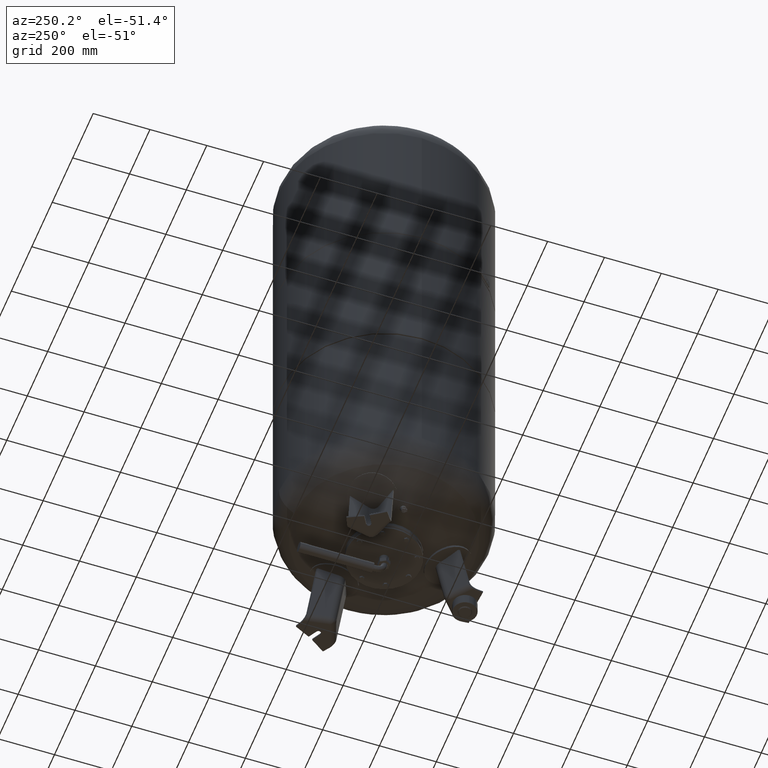
[diagram: clean part render]
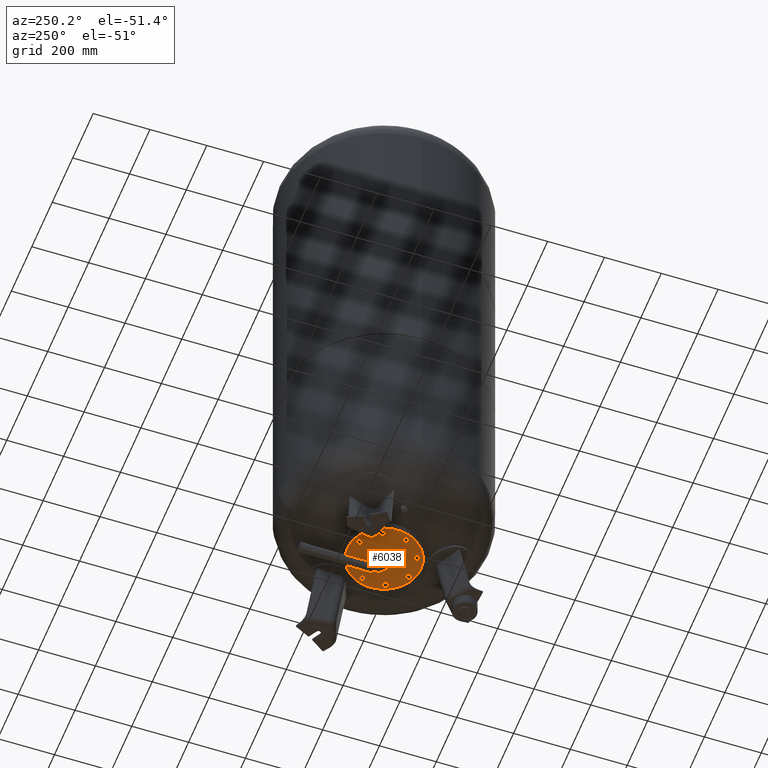
[diagram: same view with one face highlighted and labeled with its STEP entity id]
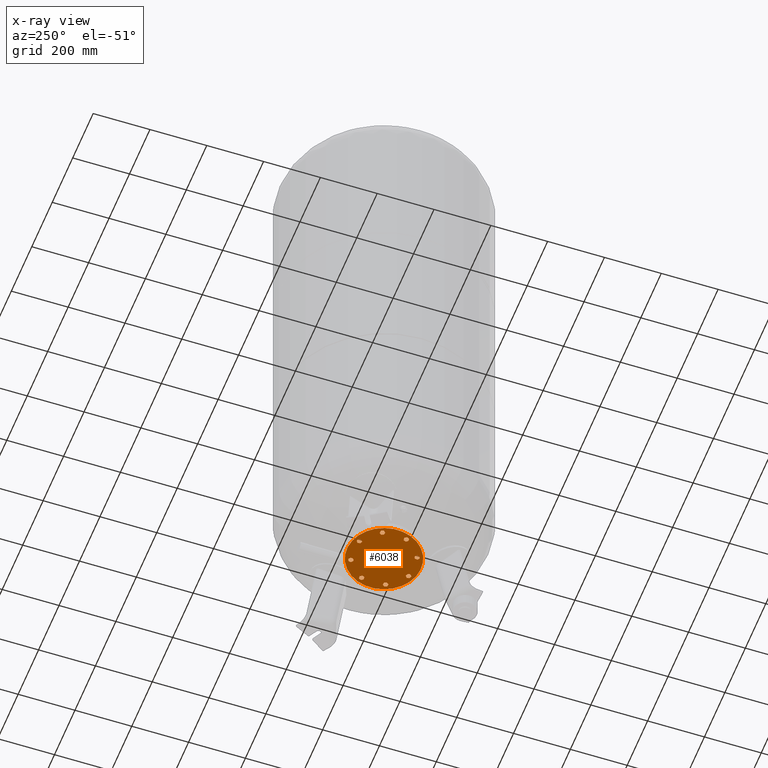
[diagram: x-ray of the same camera — body ghosted, the highlighted face saturated]
A machine part, auxiliary view. The second image highlights one B-rep face of the part: STEP entity #6038.
The next image is the same camera in x-ray: the body ghosted, the highlighted face saturated — about 0% of this face is hidden behind the body in this view.
In plain terms, the highlighted planar face has unit normal (0, 0, 1).
Its self-contained STEP definition (entity closure, byte-faithful):
#2066=CARTESIAN_POINT('',(-120.104339226467270,-49.748846207461675,165.0));
#2067=VERTEX_POINT('',#2066);
#2076=CARTESIAN_POINT('',(120.104339226467290,49.748846207461661,165.0));
#2077=VERTEX_POINT('',#2076);
#2078=CARTESIAN_POINT('',(1.171630E-015,-2.828565E-015,165.0));
#2079=DIRECTION('',(0.0,0.0,1.0));
#2080=DIRECTION('',(-0.923879532511287,-0.382683432365090,0.0));
#2081=AXIS2_PLACEMENT_3D('',#2078,#2079,#2080);
#2082=CIRCLE('',#2081,130.0);
#2083=EDGE_CURVE('',#2067,#2077,#2082,.T.);
#2110=CARTESIAN_POINT('',(-15.567370122815184,-6.448215835351768,165.0));
#2111=VERTEX_POINT('',#2110);
#2127=CARTESIAN_POINT('',(15.567370122815188,6.448215835351761,165.0));
#2128=VERTEX_POINT('',#2127);
#2135=CARTESIAN_POINT('',(1.171630E-015,-2.828565E-015,165.0));
#2136=DIRECTION('',(0.0,0.0,1.0));
#2137=DIRECTION('',(-0.923879532511287,-0.382683432365090,0.0));
#2138=AXIS2_PLACEMENT_3D('',#2135,#2136,#2137);
#2139=CIRCLE('',#2138,16.850000000000005);
#2140=EDGE_CURVE('',#2111,#2128,#2139,.T.);
#3986=CARTESIAN_POINT('',(-34.766493326885701,-96.003251377674417,165.0));
#3987=VERTEX_POINT('',#3986);
#3988=CARTESIAN_POINT('',(-43.300926875592538,-92.468173254628084,165.0));
#3989=VERTEX_POINT('',#3988);
#3990=CARTESIAN_POINT('',(-34.766493326885701,-96.003251377674417,165.0));
#3991=DIRECTION('',(-0.923879532511286,0.382683432365091,0.0));
#3992=VECTOR('',#3991,9.237604307034024);
#3993=LINE('',#3990,#3992);
#3994=EDGE_CURVE('',#3987,#3989,#3993,.T.);
#4026=CARTESIAN_POINT('',(-33.560744011452989,-105.161826699287860,165.0));
#4027=VERTEX_POINT('',#4026);
#4028=CARTESIAN_POINT('',(-33.560744011452989,-105.161826699287860,165.0));
#4029=DIRECTION('',(-0.130526192220053,0.991444861373810,0.0));
#4030=VECTOR('',#4029,9.237604307034005);
#4031=LINE('',#4028,#4030);
#4032=EDGE_CURVE('',#4027,#3987,#4031,.T.);
#4057=CARTESIAN_POINT('',(-40.889428244727128,-110.785323897855010,165.0));
#4058=VERTEX_POINT('',#4057);
#4059=CARTESIAN_POINT('',(-40.889428244727128,-110.785323897855010,165.0));
#4060=DIRECTION('',(0.793353340291235,0.608761429008721,0.0));
#4061=VECTOR('',#4060,9.237604307034024);
#4062=LINE('',#4059,#4061);
#4063=EDGE_CURVE('',#4058,#4027,#4062,.T.);
#4088=CARTESIAN_POINT('',(-49.423861793433986,-107.250245774808700,165.0));
#4089=VERTEX_POINT('',#4088);
#4090=CARTESIAN_POINT('',(-49.423861793433986,-107.250245774808700,165.0));
#4091=DIRECTION('',(0.923879532511287,-0.382683432365088,0.0));
#4092=VECTOR('',#4091,9.237604307034033);
#4093=LINE('',#4090,#4092);
#4094=EDGE_CURVE('',#4089,#4058,#4093,.T.);
#4119=CARTESIAN_POINT('',(-50.629611108866676,-98.091670453195235,165.0));
#4120=VERTEX_POINT('',#4119);
#4121=CARTESIAN_POINT('',(-43.300926875592538,-92.468173254628084,165.0));
#4122=DIRECTION('',(-0.793353340291235,-0.608761429008721,0.0));
#4123=VECTOR('',#4122,9.237604307034024);
#4124=LINE('',#4121,#4123);
#4125=EDGE_CURVE('',#3989,#4120,#4124,.T.);
#4150=CARTESIAN_POINT('',(-50.629611108866676,-98.091670453195235,165.0));
#4151=DIRECTION('',(0.130526192220051,-0.991444861373811,0.0));
#4152=VECTOR('',#4151,9.237604307034030);
#4153=LINE('',#4150,#4152);
#4154=EDGE_CURVE('',#4120,#4089,#4153,.T.);
#4232=CARTESIAN_POINT('',(43.300926875592602,-92.468173254628084,165.0));
#4233=VERTEX_POINT('',#4232);
#4234=CARTESIAN_POINT('',(34.766493326885758,-96.003251377674403,165.0));
#4235=VERTEX_POINT('',#4234);
#4236=CARTESIAN_POINT('',(43.300926875592602,-92.468173254628084,165.0));
#4237=DIRECTION('',(-0.923879532511287,-0.382683432365090,0.0));
#4238=VECTOR('',#4237,9.237604307034026);
#4239=LINE('',#4236,#4238);
#4240=EDGE_CURVE('',#4233,#4235,#4239,.T.);
#4272=CARTESIAN_POINT('',(50.629611108866733,-98.091670453195221,165.0));
#4273=VERTEX_POINT('',#4272);
#4274=CARTESIAN_POINT('',(50.629611108866733,-98.091670453195221,165.0));
#4275=DIRECTION('',(-0.793353340291235,0.608761429008721,0.0));
#4276=VECTOR('',#4275,9.237604307034008);
#4277=LINE('',#4274,#4276);
#4278=EDGE_CURVE('',#4273,#4233,#4277,.T.);
#4303=CARTESIAN_POINT('',(49.423861793434035,-107.250245774808680,165.0));
#4304=VERTEX_POINT('',#4303);
#4305=CARTESIAN_POINT('',(49.423861793434035,-107.250245774808680,165.0));
#4306=DIRECTION('',(0.130526192220051,0.991444861373810,0.0));
#4307=VECTOR('',#4306,9.237604307034017);
#4308=LINE('',#4305,#4307);
#4309=EDGE_CURVE('',#4304,#4273,#4308,.T.);
#4334=CARTESIAN_POINT('',(40.889428244727185,-110.785323897854990,165.0));
#4335=VERTEX_POINT('',#4334);
#4336=CARTESIAN_POINT('',(40.889428244727185,-110.785323897854990,165.0));
#4337=DIRECTION('',(0.923879532511287,0.382683432365090,0.0));
#4338=VECTOR('',#4337,9.237604307034031);
#4339=LINE('',#4336,#4338);
#4340=EDGE_CURVE('',#4335,#4304,#4339,.T.);
#4365=CARTESIAN_POINT('',(33.560744011453068,-105.161826699287840,165.0));
#4366=VERTEX_POINT('',#4365);
#4367=CARTESIAN_POINT('',(34.766493326885758,-96.003251377674403,165.0));
#4368=DIRECTION('',(-0.130526192220051,-0.991444861373810,0.0));
#4369=VECTOR('',#4368,9.237604307034003);
#4370=LINE('',#4367,#4369);
#4371=EDGE_CURVE('',#4235,#4366,#4370,.T.);
#4396=CARTESIAN_POINT('',(33.560744011453068,-105.161826699287840,165.0));
#4397=DIRECTION('',(0.793353340291234,-0.608761429008722,0.0));
#4398=VECTOR('',#4397,9.237604307034006);
#4399=LINE('',#4396,#4398);
#4400=EDGE_CURVE('',#4366,#4335,#4399,.T.);
#4478=CARTESIAN_POINT('',(96.003251377674403,-34.766493326885708,165.0));
#4479=VERTEX_POINT('',#4478);
#4480=CARTESIAN_POINT('',(92.468173254628098,-43.300926875592552,165.0));
#4481=VERTEX_POINT('',#4480);
#4482=CARTESIAN_POINT('',(96.003251377674403,-34.766493326885708,165.0));
#4483=DIRECTION('',(-0.382683432365089,-0.923879532511287,0.0));
#4484=VECTOR('',#4483,9.237604307034019);
#4485=LINE('',#4482,#4484);
#4486=EDGE_CURVE('',#4479,#4481,#4485,.T.);
#4518=CARTESIAN_POINT('',(105.161826699287870,-33.560744011453004,165.0));
#4519=VERTEX_POINT('',#4518);
#4520=CARTESIAN_POINT('',(105.161826699287870,-33.560744011453004,165.0));
#4521=DIRECTION('',(-0.991444861373810,-0.130526192220052,0.0));
#4522=VECTOR('',#4521,9.237604307034031);
#4523=LINE('',#4520,#4522);
#4524=EDGE_CURVE('',#4519,#4479,#4523,.T.);
#4549=CARTESIAN_POINT('',(110.785323897855010,-40.889428244727164,165.0));
#4550=VERTEX_POINT('',#4549);
#4551=CARTESIAN_POINT('',(110.785323897855010,-40.889428244727164,165.0));
#4552=DIRECTION('',(-0.608761429008719,0.793353340291236,0.0));
#4553=VECTOR('',#4552,9.237604307034031);
#4554=LINE('',#4551,#4553);
#4555=EDGE_CURVE('',#4550,#4519,#4554,.T.);
#4580=CARTESIAN_POINT('',(107.250245774808690,-49.423861793434014,165.0));
#4581=VERTEX_POINT('',#4580);
#4582=CARTESIAN_POINT('',(107.250245774808690,-49.423861793434014,165.0));
#4583=DIRECTION('',(0.382683432365090,0.923879532511287,0.0));
#4584=VECTOR('',#4583,9.237604307034031);
#4585=LINE('',#4582,#4584);
#4586=EDGE_CURVE('',#4581,#4550,#4585,.T.);
#4611=CARTESIAN_POINT('',(98.091670453195235,-50.629611108866698,165.0));
#4612=VERTEX_POINT('',#4611);
#4613=CARTESIAN_POINT('',(92.468173254628098,-43.300926875592552,165.0));
#4614=DIRECTION('',(0.608761429008720,-0.793353340291236,0.0));
#4615=VECTOR('',#4614,9.237604307034021);
#4616=LINE('',#4613,#4615);
#4617=EDGE_CURVE('',#4481,#4612,#4616,.T.);
#4642=CARTESIAN_POINT('',(98.091670453195235,-50.629611108866698,165.0));
#4643=DIRECTION('',(0.991444861373811,0.130526192220050,0.0));
#4644=VECTOR('',#4643,9.237604307034015);
#4645=LINE('',#4642,#4644);
#4646=EDGE_CURVE('',#4612,#4581,#4645,.T.);
#4724=CARTESIAN_POINT('',(92.468173254628084,43.300926875592594,165.0));
#4725=VERTEX_POINT('',#4724);
#4726=CARTESIAN_POINT('',(96.003251377674403,34.766493326885758,165.0));
#4727=VERTEX_POINT('',#4726);
#4728=CARTESIAN_POINT('',(92.468173254628084,43.300926875592594,165.0));
#4729=DIRECTION('',(0.382683432365090,-0.923879532511287,0.0));
#4730=VECTOR('',#4729,9.237604307034019);
#4731=LINE('',#4728,#4730);
#4732=EDGE_CURVE('',#4725,#4727,#4731,.T.);
#4764=CARTESIAN_POINT('',(98.091670453195221,50.629611108866733,165.0));
#4765=VERTEX_POINT('',#4764);
#4766=CARTESIAN_POINT('',(98.091670453195221,50.629611108866733,165.0));
#4767=DIRECTION('',(-0.608761429008720,-0.793353340291235,0.0));
#4768=VECTOR('',#4767,9.237604307034015);
#4769=LINE('',#4766,#4768);
#4770=EDGE_CURVE('',#4765,#4725,#4769,.T.);
#4795=CARTESIAN_POINT('',(107.250245774808680,49.423861793434028,165.0));
#4796=VERTEX_POINT('',#4795);
#4797=CARTESIAN_POINT('',(107.250245774808680,49.423861793434028,165.0));
#4798=DIRECTION('',(-0.991444861373810,0.130526192220052,0.0));
#4799=VECTOR('',#4798,9.237604307034019);
#4800=LINE('',#4797,#4799);
#4801=EDGE_CURVE('',#4796,#4765,#4800,.T.);
#4826=CARTESIAN_POINT('',(110.785323897854990,40.889428244727178,165.0));
#4827=VERTEX_POINT('',#4826);
#4828=CARTESIAN_POINT('',(110.785323897854990,40.889428244727178,165.0));
#4829=DIRECTION('',(-0.382683432365090,0.923879532511287,0.0));
#4830=VECTOR('',#4829,9.237604307034031);
#4831=LINE('',#4828,#4830);
#4832=EDGE_CURVE('',#4827,#4796,#4831,.T.);
#4857=CARTESIAN_POINT('',(105.161826699287840,33.560744011453060,165.0));
#4858=VERTEX_POINT('',#4857);
#4859=CARTESIAN_POINT('',(96.003251377674403,34.766493326885758,165.0));
#4860=DIRECTION('',(0.991444861373810,-0.130526192220052,0.0));
#4861=VECTOR('',#4860,9.237604307034003);
#4862=LINE('',#4859,#4861);
#4863=EDGE_CURVE('',#4727,#4858,#4862,.T.);
#4888=CARTESIAN_POINT('',(105.161826699287840,33.560744011453060,165.0));
#4889=DIRECTION('',(0.608761429008722,0.793353340291234,0.0));
#4890=VECTOR('',#4889,9.237604307034006);
#4891=LINE('',#4888,#4890);
#4892=EDGE_CURVE('',#4858,#4827,#4891,.T.);
#4970=CARTESIAN_POINT('',(34.766493326885723,96.003251377674417,165.0));
#4971=VERTEX_POINT('',#4970);
#4972=CARTESIAN_POINT('',(43.300926875592552,92.468173254628084,165.0));
#4973=VERTEX_POINT('',#4972);
#4974=CARTESIAN_POINT('',(34.766493326885723,96.003251377674417,165.0));
#4975=DIRECTION('',(0.923879532511286,-0.382683432365092,0.0));
#4976=VECTOR('',#4975,9.237604307034017);
#4977=LINE('',#4974,#4976);
#4978=EDGE_CURVE('',#4971,#4973,#4977,.T.);
#5010=CARTESIAN_POINT('',(33.560744011453025,105.161826699287860,165.0));
#5011=VERTEX_POINT('',#5010);
#5012=CARTESIAN_POINT('',(33.560744011453025,105.161826699287860,165.0));
#5013=DIRECTION('',(0.130526192220052,-0.991444861373810,0.0));
#5014=VECTOR('',#5013,9.237604307034003);
#5015=LINE('',#5012,#5014);
#5016=EDGE_CURVE('',#5011,#4971,#5015,.T.);
#5041=CARTESIAN_POINT('',(40.889428244727164,110.785323897855010,165.0));
#5042=VERTEX_POINT('',#5041);
#5043=CARTESIAN_POINT('',(40.889428244727164,110.785323897855010,165.0));
#5044=DIRECTION('',(-0.793353340291235,-0.608761429008721,0.0));
#5045=VECTOR('',#5044,9.237604307034024);
#5046=LINE('',#5043,#5045);
#5047=EDGE_CURVE('',#5042,#5011,#5046,.T.);
#5072=CARTESIAN_POINT('',(49.423861793434014,107.250245774808690,165.0));
#5073=VERTEX_POINT('',#5072);
#5074=CARTESIAN_POINT('',(49.423861793434014,107.250245774808690,165.0));
#5075=DIRECTION('',(-0.923879532511287,0.382683432365090,0.0));
#5076=VECTOR('',#5075,9.237604307034031);
#5077=LINE('',#5074,#5076);
#5078=EDGE_CURVE('',#5073,#5042,#5077,.T.);
#5103=CARTESIAN_POINT('',(50.629611108866698,98.091670453195235,165.0));
#5104=VERTEX_POINT('',#5103);
#5105=CARTESIAN_POINT('',(43.300926875592552,92.468173254628084,165.0));
#5106=DIRECTION('',(0.793353340291235,0.608761429008721,0.0));
#5107=VECTOR('',#5106,9.237604307034030);
#5108=LINE('',#5105,#5107);
#5109=EDGE_CURVE('',#4973,#5104,#5108,.T.);
#5134=CARTESIAN_POINT('',(50.629611108866698,98.091670453195235,165.0));
#5135=DIRECTION('',(-0.130526192220050,0.991444861373811,0.0));
#5136=VECTOR('',#5135,9.237604307034015);
#5137=LINE('',#5134,#5136);
#5138=EDGE_CURVE('',#5104,#5073,#5137,.T.);
#5216=CARTESIAN_POINT('',(-43.300926875592580,92.468173254628084,165.0));
#5217=VERTEX_POINT('',#5216);
#5218=CARTESIAN_POINT('',(-34.766493326885751,96.003251377674403,165.0));
#5219=VERTEX_POINT('',#5218);
#5220=CARTESIAN_POINT('',(-43.300926875592580,92.468173254628084,165.0));
#5221=DIRECTION('',(0.923879532511287,0.382683432365090,0.0));
#5222=VECTOR('',#5221,9.237604307034012);
#5223=LINE('',#5220,#5222);
#5224=EDGE_CURVE('',#5217,#5219,#5223,.T.);
#5256=CARTESIAN_POINT('',(-50.629611108866705,98.091670453195235,165.0));
#5257=VERTEX_POINT('',#5256);
#5258=CARTESIAN_POINT('',(-50.629611108866705,98.091670453195235,165.0));
#5259=DIRECTION('',(0.793353340291234,-0.608761429008722,0.0));
#5260=VECTOR('',#5259,9.237604307034012);
#5261=LINE('',#5258,#5260);
#5262=EDGE_CURVE('',#5257,#5217,#5261,.T.);
#5287=CARTESIAN_POINT('',(-49.423861793434014,107.250245774808680,165.0));
#5288=VERTEX_POINT('',#5287);
#5289=CARTESIAN_POINT('',(-49.423861793434014,107.250245774808680,165.0));
#5290=DIRECTION('',(-0.130526192220051,-0.991444861373810,0.0));
#5291=VECTOR('',#5290,9.237604307034003);
#5292=LINE('',#5289,#5291);
#5293=EDGE_CURVE('',#5288,#5257,#5292,.T.);
#5318=CARTESIAN_POINT('',(-40.889428244727171,110.785323897855010,165.0));
#5319=VERTEX_POINT('',#5318);
#5320=CARTESIAN_POINT('',(-40.889428244727171,110.785323897855010,165.0));
#5321=DIRECTION('',(-0.923879532511286,-0.382683432365091,0.0));
#5322=VECTOR('',#5321,9.237604307034031);
#5323=LINE('',#5320,#5322);
#5324=EDGE_CURVE('',#5319,#5288,#5323,.T.);
#5349=CARTESIAN_POINT('',(-33.560744011453032,105.161826699287860,165.0));
#5350=VERTEX_POINT('',#5349);
#5351=CARTESIAN_POINT('',(-34.766493326885751,96.003251377674403,165.0));
#5352=DIRECTION('',(0.130526192220054,0.991444861373810,0.0));
#5353=VECTOR('',#5352,9.237604307034019);
#5354=LINE('',#5351,#5353);
#5355=EDGE_CURVE('',#5219,#5350,#5354,.T.);
#5380=CARTESIAN_POINT('',(-33.560744011453032,105.161826699287860,165.0));
#5381=DIRECTION('',(-0.793353340291235,0.608761429008721,0.0));
#5382=VECTOR('',#5381,9.237604307034024);
#5383=LINE('',#5380,#5382);
#5384=EDGE_CURVE('',#5350,#5319,#5383,.T.);
#5462=CARTESIAN_POINT('',(-96.003251377674417,34.766493326885723,165.0));
#5463=VERTEX_POINT('',#5462);
#5464=CARTESIAN_POINT('',(-92.468173254628084,43.300926875592552,165.0));
#5465=VERTEX_POINT('',#5464);
#5466=CARTESIAN_POINT('',(-96.003251377674417,34.766493326885723,165.0));
#5467=DIRECTION('',(0.382683432365092,0.923879532511286,0.0));
#5468=VECTOR('',#5467,9.237604307034017);
#5469=LINE('',#5466,#5468);
#5470=EDGE_CURVE('',#5463,#5465,#5469,.T.);
#5502=CARTESIAN_POINT('',(-105.161826699287860,33.560744011453025,165.0));
#5503=VERTEX_POINT('',#5502);
#5504=CARTESIAN_POINT('',(-105.161826699287860,33.560744011453025,165.0));
#5505=DIRECTION('',(0.991444861373810,0.130526192220052,0.0));
#5506=VECTOR('',#5505,9.237604307034003);
#5507=LINE('',#5504,#5506);
#5508=EDGE_CURVE('',#5503,#5463,#5507,.T.);
#5533=CARTESIAN_POINT('',(-110.785323897855010,40.889428244727164,165.0));
#5534=VERTEX_POINT('',#5533);
#5535=CARTESIAN_POINT('',(-110.785323897855010,40.889428244727164,165.0));
#5536=DIRECTION('',(0.608761429008721,-0.793353340291235,0.0));
#5537=VECTOR('',#5536,9.237604307034024);
#5538=LINE('',#5535,#5537);
#5539=EDGE_CURVE('',#5534,#5503,#5538,.T.);
#5564=CARTESIAN_POINT('',(-107.250245774808690,49.423861793434014,165.0));
#5565=VERTEX_POINT('',#5564);
#5566=CARTESIAN_POINT('',(-107.250245774808690,49.423861793434014,165.0));
#5567=DIRECTION('',(-0.382683432365090,-0.923879532511287,0.0));
#5568=VECTOR('',#5567,9.237604307034031);
#5569=LINE('',#5566,#5568);
#5570=EDGE_CURVE('',#5565,#5534,#5569,.T.);
#5595=CARTESIAN_POINT('',(-98.091670453195235,50.629611108866698,165.0));
#5596=VERTEX_POINT('',#5595);
#5597=CARTESIAN_POINT('',(-92.468173254628084,43.300926875592552,165.0));
#5598=DIRECTION('',(-0.608761429008721,0.793353340291235,0.0));
#5599=VECTOR('',#5598,9.237604307034030);
#5600=LINE('',#5597,#5599);
#5601=EDGE_CURVE('',#5465,#5596,#5600,.T.);
#5626=CARTESIAN_POINT('',(-98.091670453195235,50.629611108866698,165.0));
#5627=DIRECTION('',(-0.991444861373811,-0.130526192220050,0.0));
#5628=VECTOR('',#5627,9.237604307034015);
#5629=LINE('',#5626,#5628);
#5630=EDGE_CURVE('',#5596,#5565,#5629,.T.);
#5708=CARTESIAN_POINT('',(-92.468173254628084,-43.300926875592587,165.0));
#5709=VERTEX_POINT('',#5708);
#5710=CARTESIAN_POINT('',(-96.003251377674403,-34.766493326885744,165.0));
#5711=VERTEX_POINT('',#5710);
#5712=CARTESIAN_POINT('',(-92.468173254628084,-43.300926875592587,165.0));
#5713=DIRECTION('',(-0.382683432365090,0.923879532511287,0.0));
#5714=VECTOR('',#5713,9.237604307034026);
#5715=LINE('',#5712,#5714);
#5716=EDGE_CURVE('',#5709,#5711,#5715,.T.);
#5748=CARTESIAN_POINT('',(-98.091670453195221,-50.629611108866719,165.0));
#5749=VERTEX_POINT('',#5748);
#5750=CARTESIAN_POINT('',(-98.091670453195221,-50.629611108866719,165.0));
#5751=DIRECTION('',(0.608761429008721,0.793353340291235,0.0));
#5752=VECTOR('',#5751,9.237604307034008);
#5753=LINE('',#5750,#5752);
#5754=EDGE_CURVE('',#5749,#5709,#5753,.T.);
#5779=CARTESIAN_POINT('',(-107.250245774808690,-49.423861793434014,165.0));
#5780=VERTEX_POINT('',#5779);
#5781=CARTESIAN_POINT('',(-107.250245774808690,-49.423861793434014,165.0));
#5782=DIRECTION('',(0.991444861373810,-0.130526192220052,0.0));
#5783=VECTOR('',#5782,9.237604307034031);
#5784=LINE('',#5781,#5783);
#5785=EDGE_CURVE('',#5780,#5749,#5784,.T.);
#5810=CARTESIAN_POINT('',(-110.785323897855010,-40.889428244727164,165.0));
#5811=VERTEX_POINT('',#5810);
#5812=CARTESIAN_POINT('',(-110.785323897855010,-40.889428244727164,165.0));
#5813=DIRECTION('',(0.382683432365090,-0.923879532511287,0.0));
#5814=VECTOR('',#5813,9.237604307034031);
#5815=LINE('',#5812,#5814);
#5816=EDGE_CURVE('',#5811,#5780,#5815,.T.);
#5841=CARTESIAN_POINT('',(-105.161826699287860,-33.560744011453039,165.0));
#5842=VERTEX_POINT('',#5841);
#5843=CARTESIAN_POINT('',(-96.003251377674403,-34.766493326885744,165.0));
#5844=DIRECTION('',(-0.991444861373810,0.130526192220052,0.0));
#5845=VECTOR('',#5844,9.237604307034019);
#5846=LINE('',#5843,#5845);
#5847=EDGE_CURVE('',#5711,#5842,#5846,.T.);
#5872=CARTESIAN_POINT('',(-105.161826699287860,-33.560744011453039,165.0));
#5873=DIRECTION('',(-0.608761429008722,-0.793353340291234,0.0));
#5874=VECTOR('',#5873,9.237604307034012);
#5875=LINE('',#5872,#5874);
#5876=EDGE_CURVE('',#5842,#5811,#5875,.T.);
#5909=CARTESIAN_POINT('',(1.171630E-015,-2.828565E-015,165.0));
#5910=DIRECTION('',(0.0,0.0,1.0));
#5911=DIRECTION('',(-0.923879532511287,-0.382683432365090,0.0));
#5912=AXIS2_PLACEMENT_3D('',#5909,#5910,#5911);
#5913=CIRCLE('',#5912,16.850000000000005);
#5914=EDGE_CURVE('',#2128,#2111,#5913,.T.);
#5951=CARTESIAN_POINT('',(1.171630E-015,-2.828565E-015,165.0));
#5952=DIRECTION('',(0.0,0.0,1.0));
#5953=DIRECTION('',(-0.923879532511287,-0.382683432365090,0.0));
#5954=AXIS2_PLACEMENT_3D('',#5951,#5952,#5953);
#5955=CIRCLE('',#5954,130.0);
#5956=EDGE_CURVE('',#2077,#2067,#5955,.T.);
#5961=CARTESIAN_POINT('',(1.171630E-015,-2.828565E-015,165.0));
#5962=DIRECTION('',(0.0,0.0,1.0));
#5963=DIRECTION('',(-0.923879532511287,-0.382683432365090,0.0));
#5964=AXIS2_PLACEMENT_3D('',#5961,#5962,#5963);
#5965=PLANE('',#5964);
#5966=ORIENTED_EDGE('',*,*,#5956,.F.);
#5967=ORIENTED_EDGE('',*,*,#2083,.F.);
#5968=EDGE_LOOP('',(#5966,#5967));
#5969=FACE_OUTER_BOUND('',#5968,.T.);
#5970=ORIENTED_EDGE('',*,*,#3994,.T.);
#5971=ORIENTED_EDGE('',*,*,#4125,.T.);
#5972=ORIENTED_EDGE('',*,*,#4154,.T.);
#5973=ORIENTED_EDGE('',*,*,#4094,.T.);
#5974=ORIENTED_EDGE('',*,*,#4063,.T.);
#5975=ORIENTED_EDGE('',*,*,#4032,.T.);
#5976=EDGE_LOOP('',(#5970,#5971,#5972,#5973,#5974,#5975));
#5977=FACE_BOUND('',#5976,.T.);
#5978=ORIENTED_EDGE('',*,*,#4240,.T.);
#5979=ORIENTED_EDGE('',*,*,#4371,.T.);
#5980=ORIENTED_EDGE('',*,*,#4400,.T.);
#5981=ORIENTED_EDGE('',*,*,#4340,.T.);
#5982=ORIENTED_EDGE('',*,*,#4309,.T.);
#5983=ORIENTED_EDGE('',*,*,#4278,.T.);
#5984=EDGE_LOOP('',(#5978,#5979,#5980,#5981,#5982,#5983));
#5985=FACE_BOUND('',#5984,.T.);
#5986=ORIENTED_EDGE('',*,*,#4486,.T.);
#5987=ORIENTED_EDGE('',*,*,#4617,.T.);
#5988=ORIENTED_EDGE('',*,*,#4646,.T.);
#5989=ORIENTED_EDGE('',*,*,#4586,.T.);
#5990=ORIENTED_EDGE('',*,*,#4555,.T.);
#5991=ORIENTED_EDGE('',*,*,#4524,.T.);
#5992=EDGE_LOOP('',(#5986,#5987,#5988,#5989,#5990,#5991));
#5993=FACE_BOUND('',#5992,.T.);
#5994=ORIENTED_EDGE('',*,*,#4732,.T.);
#5995=ORIENTED_EDGE('',*,*,#4863,.T.);
#5996=ORIENTED_EDGE('',*,*,#4892,.T.);
#5997=ORIENTED_EDGE('',*,*,#4832,.T.);
#5998=ORIENTED_EDGE('',*,*,#4801,.T.);
#5999=ORIENTED_EDGE('',*,*,#4770,.T.);
#6000=EDGE_LOOP('',(#5994,#5995,#5996,#5997,#5998,#5999));
#6001=FACE_BOUND('',#6000,.T.);
#6002=ORIENTED_EDGE('',*,*,#4978,.T.);
#6003=ORIENTED_EDGE('',*,*,#5109,.T.);
#6004=ORIENTED_EDGE('',*,*,#5138,.T.);
#6005=ORIENTED_EDGE('',*,*,#5078,.T.);
#6006=ORIENTED_EDGE('',*,*,#5047,.T.);
#6007=ORIENTED_EDGE('',*,*,#5016,.T.);
#6008=EDGE_LOOP('',(#6002,#6003,#6004,#6005,#6006,#6007));
#6009=FACE_BOUND('',#6008,.T.);
#6010=ORIENTED_EDGE('',*,*,#5224,.T.);
#6011=ORIENTED_EDGE('',*,*,#5355,.T.);
#6012=ORIENTED_EDGE('',*,*,#5384,.T.);
#6013=ORIENTED_EDGE('',*,*,#5324,.T.);
#6014=ORIENTED_EDGE('',*,*,#5293,.T.);
#6015=ORIENTED_EDGE('',*,*,#5262,.T.);
#6016=EDGE_LOOP('',(#6010,#6011,#6012,#6013,#6014,#6015));
#6017=FACE_BOUND('',#6016,.T.);
#6018=ORIENTED_EDGE('',*,*,#5470,.T.);
#6019=ORIENTED_EDGE('',*,*,#5601,.T.);
#6020=ORIENTED_EDGE('',*,*,#5630,.T.);
#6021=ORIENTED_EDGE('',*,*,#5570,.T.);
#6022=ORIENTED_EDGE('',*,*,#5539,.T.);
#6023=ORIENTED_EDGE('',*,*,#5508,.T.);
#6024=EDGE_LOOP('',(#6018,#6019,#6020,#6021,#6022,#6023));
#6025=FACE_BOUND('',#6024,.T.);
#6026=ORIENTED_EDGE('',*,*,#5716,.T.);
#6027=ORIENTED_EDGE('',*,*,#5847,.T.);
#6028=ORIENTED_EDGE('',*,*,#5876,.T.);
#6029=ORIENTED_EDGE('',*,*,#5816,.T.);
#6030=ORIENTED_EDGE('',*,*,#5785,.T.);
#6031=ORIENTED_EDGE('',*,*,#5754,.T.);
#6032=EDGE_LOOP('',(#6026,#6027,#6028,#6029,#6030,#6031));
#6033=FACE_BOUND('',#6032,.T.);
#6034=ORIENTED_EDGE('',*,*,#5914,.T.);
#6035=ORIENTED_EDGE('',*,*,#2140,.T.);
#6036=EDGE_LOOP('',(#6034,#6035));
#6037=FACE_BOUND('',#6036,.T.);
#6038=ADVANCED_FACE('',(#5969,#5977,#5985,#5993,#6001,#6009,#6017,#6025,#6033,#6037),#5965,.F.);